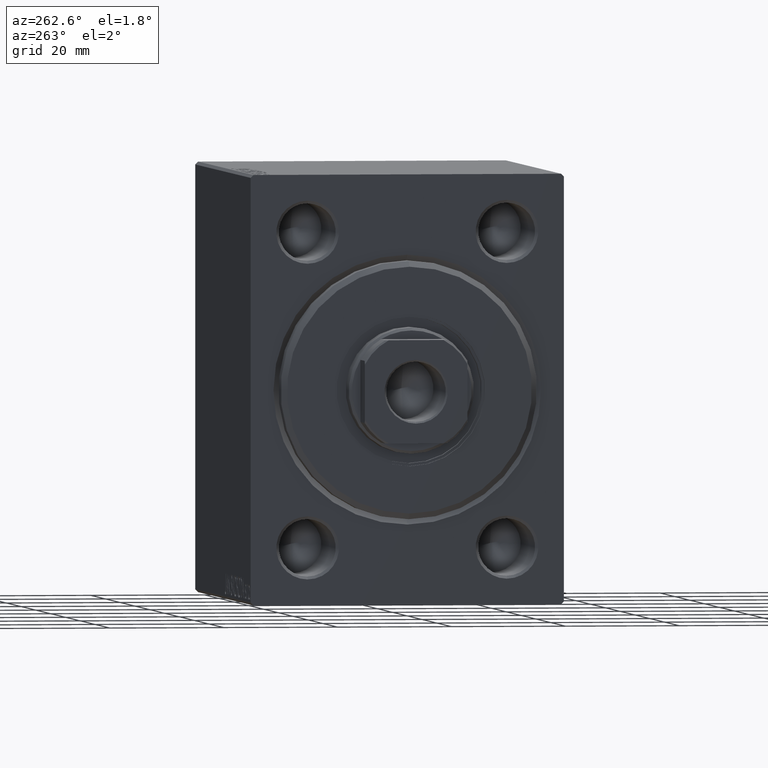
[diagram: clean part render]
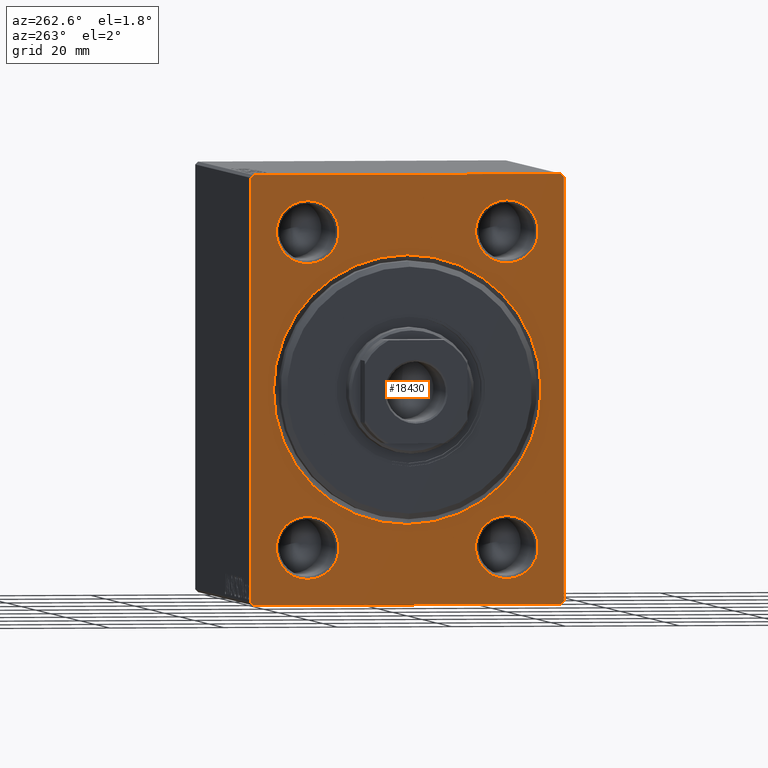
[diagram: same view with one face highlighted and labeled with its STEP entity id]
A machine part, auxiliary view. The second image highlights one B-rep face of the part: STEP entity #18430.
In plain terms, the highlighted planar face has unit normal (1, 0, 0).
Its self-contained STEP definition (entity closure, byte-faithful):
#83 = VERTEX_POINT ( 'NONE', #37054 ) ;
#647 = DIRECTION ( 'NONE',  ( 1.000000000000000000, 0.000000000000000000, 0.000000000000000000 ) ) ;
#742 = ORIENTED_EDGE ( 'NONE', *, *, #34418, .T. ) ;
#1707 = DIRECTION ( 'NONE',  ( 0.000000000000000000, 0.000000000000000000, -1.000000000000000000 ) ) ;
#1836 = CARTESIAN_POINT ( 'NONE',  ( 0.000000000000000000, -26.99999999999999645, -37.50000000000000000 ) ) ;
#1911 = VERTEX_POINT ( 'NONE', #34333 ) ;
#2253 = FACE_BOUND ( 'NONE', #6599, .T. ) ;
#2438 = DIRECTION ( 'NONE',  ( 1.000000000000000000, 0.000000000000000000, 0.000000000000000000 ) ) ;
#3298 = CARTESIAN_POINT ( 'NONE',  ( 0.000000000000000000, -17.50000000000000000, -21.99999999999997868 ) ) ;
#4293 = VECTOR ( 'NONE', #32413, 1000.000000000000000 ) ;
#4886 = VERTEX_POINT ( 'NONE', #9165 ) ;
#5223 = DIRECTION ( 'NONE',  ( 1.000000000000000000, 0.000000000000000000, 0.000000000000000000 ) ) ;
#5839 = DIRECTION ( 'NONE',  ( 1.000000000000000000, 0.000000000000000000, 0.000000000000000000 ) ) ;
#6336 = CIRCLE ( 'NONE', #37127, 5.500000000000001776 ) ;
#6485 = EDGE_CURVE ( 'NONE', #34258, #20159, #28331, .T. ) ;
#6599 = EDGE_LOOP ( 'NONE', ( #32064, #36457 ) ) ;
#7498 = LINE ( 'NONE', #17616, #35744 ) ;
#7537 = VECTOR ( 'NONE', #42684, 1000.000000000000000 ) ;
#7933 = CARTESIAN_POINT ( 'NONE',  ( 0.000000000000000000, 17.50000000000000000, 27.50000000000000000 ) ) ;
#8046 = ORIENTED_EDGE ( 'NONE', *, *, #15360, .F. ) ;
#8048 = CARTESIAN_POINT ( 'NONE',  ( 0.000000000000000000, 0.000000000000000000, 0.000000000000000000 ) ) ;
#8477 = EDGE_CURVE ( 'NONE', #27293, #31369, #32805, .T. ) ;
#8632 = ORIENTED_EDGE ( 'NONE', *, *, #40438, .T. ) ;
#8811 = DIRECTION ( 'NONE',  ( 0.000000000000000000, 0.000000000000000000, -1.000000000000000000 ) ) ;
#8940 = EDGE_CURVE ( 'NONE', #17649, #20159, #12903, .T. ) ;
#9051 = CARTESIAN_POINT ( 'NONE',  ( 0.000000000000000000, 27.00000000000001066, 37.50000000000000000 ) ) ;
#9165 = CARTESIAN_POINT ( 'NONE',  ( 0.000000000000000000, 27.00000000000000355, -37.50000000000000000 ) ) ;
#9524 = DIRECTION ( 'NONE',  ( 0.000000000000000000, 0.000000000000000000, -1.000000000000000000 ) ) ;
#10153 = CIRCLE ( 'NONE', #11578, 5.500000000000018652 ) ;
#10558 = ORIENTED_EDGE ( 'NONE', *, *, #8940, .F. ) ;
#10864 = CARTESIAN_POINT ( 'NONE',  ( 0.000000000000000000, -27.49999999999999645, 36.99999999999997158 ) ) ;
#11003 = EDGE_CURVE ( 'NONE', #25510, #27464, #32668, .T. ) ;
#11293 = CARTESIAN_POINT ( 'NONE',  ( 0.000000000000000000, 27.50000000000000355, -37.00000000000000000 ) ) ;
#11478 = VERTEX_POINT ( 'NONE', #40336 ) ;
#11578 = AXIS2_PLACEMENT_3D ( 'NONE', #39901, #2438, #40344 ) ;
#12131 = DIRECTION ( 'NONE',  ( 1.000000000000000000, 0.000000000000000000, 0.000000000000000000 ) ) ;
#12513 = LINE ( 'NONE', #15209, #16338 ) ;
#12710 = LINE ( 'NONE', #26386, #40762 ) ;
#12842 = CARTESIAN_POINT ( 'NONE',  ( 0.000000000000000000, 27.50000000000000355, -37.50000000000000000 ) ) ;
#12903 = LINE ( 'NONE', #18819, #26906 ) ;
#12932 = DIRECTION ( 'NONE',  ( -0.000000000000000000, 0.7071067811865474617, -0.7071067811865474617 ) ) ;
#13460 = CIRCLE ( 'NONE', #38526, 5.500000000000001776 ) ;
#14290 = EDGE_CURVE ( 'NONE', #44181, #16676, #41378, .T. ) ;
#14780 = AXIS2_PLACEMENT_3D ( 'NONE', #38409, #39075, #42432 ) ;
#15209 = CARTESIAN_POINT ( 'NONE',  ( 0.000000000000000000, -27.49999999999999645, -37.50000000000000000 ) ) ;
#15237 = VERTEX_POINT ( 'NONE', #3298 ) ;
#15287 = AXIS2_PLACEMENT_3D ( 'NONE', #22213, #35876, #29362 ) ;
#15360 = EDGE_CURVE ( 'NONE', #34258, #4886, #12513, .T. ) ;
#15408 = DIRECTION ( 'NONE',  ( 1.000000000000000000, 0.000000000000000000, 0.000000000000000000 ) ) ;
#15730 = AXIS2_PLACEMENT_3D ( 'NONE', #8048, #647, #32656 ) ;
#16111 = EDGE_CURVE ( 'NONE', #1911, #83, #13460, .T. ) ;
#16338 = VECTOR ( 'NONE', #43004, 1000.000000000000000 ) ;
#16525 = ORIENTED_EDGE ( 'NONE', *, *, #8477, .F. ) ;
#16655 = EDGE_CURVE ( 'NONE', #83, #1911, #6336, .T. ) ;
#16676 = VERTEX_POINT ( 'NONE', #42908 ) ;
#16891 = EDGE_LOOP ( 'NONE', ( #39267, #18329 ) ) ;
#17225 = DIRECTION ( 'NONE',  ( 0.000000000000000000, 0.000000000000000000, -1.000000000000000000 ) ) ;
#17235 = EDGE_LOOP ( 'NONE', ( #8632, #24365 ) ) ;
#17616 = CARTESIAN_POINT ( 'NONE',  ( 0.000000000000000000, 27.50000000000000355, -37.00000000000000000 ) ) ;
#17646 = EDGE_CURVE ( 'NONE', #27293, #4886, #7498, .T. ) ;
#17649 = VERTEX_POINT ( 'NONE', #10864 ) ;
#18181 = CIRCLE ( 'NONE', #15287, 5.500000000000018652 ) ;
#18329 = ORIENTED_EDGE ( 'NONE', *, *, #16655, .T. ) ;
#18430 = ADVANCED_FACE ( 'NONE', ( #43965, #19327, #29627, #43299, #2253, #26263 ), #36142, .F. ) ;
#18583 = ORIENTED_EDGE ( 'NONE', *, *, #43062, .T. ) ;
#18819 = CARTESIAN_POINT ( 'NONE',  ( 0.000000000000000000, -27.49999999999999645, 37.49999999999998579 ) ) ;
#19327 = FACE_BOUND ( 'NONE', #17235, .T. ) ;
#19440 = LINE ( 'NONE', #19663, #31812 ) ;
#19663 = CARTESIAN_POINT ( 'NONE',  ( 0.000000000000000000, -27.49999999999999645, 36.99999999999997158 ) ) ;
#19982 = EDGE_CURVE ( 'NONE', #35897, #31369, #12710, .T. ) ;
#20114 = CARTESIAN_POINT ( 'NONE',  ( 0.000000000000000000, 17.50000000000000000, -33.00000000000001421 ) ) ;
#20159 = VERTEX_POINT ( 'NONE', #35102 ) ;
#20692 = CARTESIAN_POINT ( 'NONE',  ( 0.000000000000000000, 27.49999999999999645, 37.00000000000001421 ) ) ;
#21151 = EDGE_CURVE ( 'NONE', #24652, #35294, #35708, .T. ) ;
#21772 = ORIENTED_EDGE ( 'NONE', *, *, #25572, .F. ) ;
#22213 = CARTESIAN_POINT ( 'NONE',  ( 0.000000000000000000, -17.50000000000000000, -27.49999999999999645 ) ) ;
#22384 = CIRCLE ( 'NONE', #33823, 23.50000000000000355 ) ;
#22444 = CIRCLE ( 'NONE', #37485, 5.500000000000018652 ) ;
#22473 = DIRECTION ( 'NONE',  ( 0.000000000000000000, 0.000000000000000000, -1.000000000000000000 ) ) ;
#22551 = LINE ( 'NONE', #36220, #4293 ) ;
#22586 = CARTESIAN_POINT ( 'NONE',  ( 0.000000000000000000, -17.50000000000000000, 27.50000000000000000 ) ) ;
#22919 = ORIENTED_EDGE ( 'NONE', *, *, #6485, .T. ) ;
#23570 = ORIENTED_EDGE ( 'NONE', *, *, #17646, .T. ) ;
#23575 = DIRECTION ( 'NONE',  ( 1.000000000000000000, 0.000000000000000000, 0.000000000000000000 ) ) ;
#24365 = ORIENTED_EDGE ( 'NONE', *, *, #41385, .T. ) ;
#24652 = VERTEX_POINT ( 'NONE', #43203 ) ;
#25148 = CARTESIAN_POINT ( 'NONE',  ( 0.000000000000000000, 17.50000000000000000, 27.50000000000000000 ) ) ;
#25410 = DIRECTION ( 'NONE',  ( -0.000000000000000000, -0.7071067811865474617, 0.7071067811865474617 ) ) ;
#25510 = VERTEX_POINT ( 'NONE', #35114 ) ;
#25572 = EDGE_CURVE ( 'NONE', #35897, #40271, #22551, .T. ) ;
#26263 = FACE_OUTER_BOUND ( 'NONE', #35853, .T. ) ;
#26386 = CARTESIAN_POINT ( 'NONE',  ( 0.000000000000000000, 27.00000000000001066, 37.50000000000000000 ) ) ;
#26519 = EDGE_LOOP ( 'NONE', ( #742, #39794 ) ) ;
#26684 = AXIS2_PLACEMENT_3D ( 'NONE', #22586, #28852, #1707 ) ;
#26701 = CARTESIAN_POINT ( 'NONE',  ( 0.000000000000000000, 0.000000000000000000, 0.000000000000000000 ) ) ;
#26845 = VECTOR ( 'NONE', #25410, 1000.000000000000114 ) ;
#26906 = VECTOR ( 'NONE', #9524, 1000.000000000000000 ) ;
#27293 = VERTEX_POINT ( 'NONE', #11293 ) ;
#27464 = VERTEX_POINT ( 'NONE', #33021 ) ;
#28331 = LINE ( 'NONE', #1836, #26845 ) ;
#28852 = DIRECTION ( 'NONE',  ( 1.000000000000000000, 0.000000000000000000, 0.000000000000000000 ) ) ;
#29362 = DIRECTION ( 'NONE',  ( 0.000000000000000000, 0.000000000000000000, -1.000000000000000000 ) ) ;
#29627 = FACE_BOUND ( 'NONE', #31735, .T. ) ;
#29750 = CARTESIAN_POINT ( 'NONE',  ( 0.000000000000000000, 17.50000000000000000, -27.49999999999999645 ) ) ;
#29966 = DIRECTION ( 'NONE',  ( -0.000000000000000000, 0.7071067811865474617, 0.7071067811865474617 ) ) ;
#30011 = DIRECTION ( 'NONE',  ( 1.000000000000000000, 0.000000000000000000, 0.000000000000000000 ) ) ;
#31369 = VERTEX_POINT ( 'NONE', #20692 ) ;
#31508 = DIRECTION ( 'NONE',  ( 0.000000000000000000, -0.7071067811865474617, -0.7071067811865474617 ) ) ;
#31726 = CIRCLE ( 'NONE', #26684, 5.500000000000022204 ) ;
#31735 = EDGE_LOOP ( 'NONE', ( #38119, #40422 ) ) ;
#31812 = VECTOR ( 'NONE', #29966, 1000.000000000000114 ) ;
#32064 = ORIENTED_EDGE ( 'NONE', *, *, #36569, .T. ) ;
#32413 = DIRECTION ( 'NONE',  ( 0.000000000000000000, -1.000000000000000000, -2.523234146875355998E-16 ) ) ;
#32656 = DIRECTION ( 'NONE',  ( 0.000000000000000000, 0.000000000000000000, -1.000000000000000000 ) ) ;
#32668 = CIRCLE ( 'NONE', #14780, 5.500000000000022204 ) ;
#32805 = LINE ( 'NONE', #12842, #7537 ) ;
#33021 = CARTESIAN_POINT ( 'NONE',  ( 0.000000000000000000, -17.50000000000000000, 33.00000000000002132 ) ) ;
#33654 = CARTESIAN_POINT ( 'NONE',  ( 0.000000000000000000, -17.50000000000000000, -27.49999999999999645 ) ) ;
#33823 = AXIS2_PLACEMENT_3D ( 'NONE', #43905, #30011, #17225 ) ;
#34258 = VERTEX_POINT ( 'NONE', #36080 ) ;
#34333 = CARTESIAN_POINT ( 'NONE',  ( 0.000000000000000000, 17.50000000000000000, 33.00000000000000711 ) ) ;
#34418 = EDGE_CURVE ( 'NONE', #35294, #24652, #22384, .T. ) ;
#35102 = CARTESIAN_POINT ( 'NONE',  ( 0.000000000000000000, -27.49999999999999645, -37.00000000000000000 ) ) ;
#35114 = CARTESIAN_POINT ( 'NONE',  ( 0.000000000000000000, -17.50000000000000000, 21.99999999999998224 ) ) ;
#35294 = VERTEX_POINT ( 'NONE', #44134 ) ;
#35526 = EDGE_CURVE ( 'NONE', #27464, #25510, #31726, .T. ) ;
#35708 = CIRCLE ( 'NONE', #15730, 23.50000000000000355 ) ;
#35744 = VECTOR ( 'NONE', #31508, 1000.000000000000114 ) ;
#35853 = EDGE_LOOP ( 'NONE', ( #10558, #18583, #21772, #44103, #16525, #23570, #8046, #22919 ) ) ;
#35876 = DIRECTION ( 'NONE',  ( 1.000000000000000000, 0.000000000000000000, 0.000000000000000000 ) ) ;
#35897 = VERTEX_POINT ( 'NONE', #9051 ) ;
#36080 = CARTESIAN_POINT ( 'NONE',  ( 0.000000000000000000, -26.99999999999999645, -37.50000000000000000 ) ) ;
#36142 = PLANE ( 'NONE',  #43606 ) ;
#36220 = CARTESIAN_POINT ( 'NONE',  ( 0.000000000000000000, 27.49999999999999645, 37.50000000000000000 ) ) ;
#36457 = ORIENTED_EDGE ( 'NONE', *, *, #14290, .T. ) ;
#36569 = EDGE_CURVE ( 'NONE', #16676, #44181, #10153, .T. ) ;
#37054 = CARTESIAN_POINT ( 'NONE',  ( 0.000000000000000000, 17.50000000000000000, 21.99999999999999645 ) ) ;
#37127 = AXIS2_PLACEMENT_3D ( 'NONE', #7933, #5223, #8811 ) ;
#37477 = DIRECTION ( 'NONE',  ( 0.000000000000000000, 0.000000000000000000, -1.000000000000000000 ) ) ;
#37485 = AXIS2_PLACEMENT_3D ( 'NONE', #33654, #23575, #37477 ) ;
#38119 = ORIENTED_EDGE ( 'NONE', *, *, #35526, .T. ) ;
#38409 = CARTESIAN_POINT ( 'NONE',  ( 0.000000000000000000, -17.50000000000000000, 27.50000000000000000 ) ) ;
#38526 = AXIS2_PLACEMENT_3D ( 'NONE', #25148, #12131, #38824 ) ;
#38824 = DIRECTION ( 'NONE',  ( 0.000000000000000000, 0.000000000000000000, -1.000000000000000000 ) ) ;
#39075 = DIRECTION ( 'NONE',  ( 1.000000000000000000, 0.000000000000000000, 0.000000000000000000 ) ) ;
#39267 = ORIENTED_EDGE ( 'NONE', *, *, #16111, .T. ) ;
#39794 = ORIENTED_EDGE ( 'NONE', *, *, #21151, .T. ) ;
#39901 = CARTESIAN_POINT ( 'NONE',  ( 0.000000000000000000, 17.50000000000000000, -27.49999999999999645 ) ) ;
#40271 = VERTEX_POINT ( 'NONE', #42865 ) ;
#40336 = CARTESIAN_POINT ( 'NONE',  ( 0.000000000000000000, -17.50000000000000000, -33.00000000000001421 ) ) ;
#40344 = DIRECTION ( 'NONE',  ( 0.000000000000000000, 0.000000000000000000, -1.000000000000000000 ) ) ;
#40422 = ORIENTED_EDGE ( 'NONE', *, *, #11003, .T. ) ;
#40438 = EDGE_CURVE ( 'NONE', #15237, #11478, #22444, .T. ) ;
#40762 = VECTOR ( 'NONE', #12932, 1000.000000000000114 ) ;
#41378 = CIRCLE ( 'NONE', #43509, 5.500000000000018652 ) ;
#41385 = EDGE_CURVE ( 'NONE', #11478, #15237, #18181, .T. ) ;
#42432 = DIRECTION ( 'NONE',  ( 0.000000000000000000, 0.000000000000000000, -1.000000000000000000 ) ) ;
#42684 = DIRECTION ( 'NONE',  ( 0.000000000000000000, -9.251858538542971581E-17, 1.000000000000000000 ) ) ;
#42865 = CARTESIAN_POINT ( 'NONE',  ( 0.000000000000000000, -26.99999999999998224, 37.49999999999998579 ) ) ;
#42908 = CARTESIAN_POINT ( 'NONE',  ( 0.000000000000000000, 17.50000000000000000, -21.99999999999997868 ) ) ;
#43004 = DIRECTION ( 'NONE',  ( 0.000000000000000000, 1.000000000000000000, 0.000000000000000000 ) ) ;
#43062 = EDGE_CURVE ( 'NONE', #17649, #40271, #19440, .T. ) ;
#43203 = CARTESIAN_POINT ( 'NONE',  ( 0.000000000000000000, 2.877919977996280715E-15, -23.50000000000000355 ) ) ;
#43299 = FACE_BOUND ( 'NONE', #16891, .T. ) ;
#43419 = DIRECTION ( 'NONE',  ( 0.000000000000000000, 0.000000000000000000, -1.000000000000000000 ) ) ;
#43509 = AXIS2_PLACEMENT_3D ( 'NONE', #29750, #15408, #43419 ) ;
#43606 = AXIS2_PLACEMENT_3D ( 'NONE', #26701, #5839, #22473 ) ;
#43905 = CARTESIAN_POINT ( 'NONE',  ( 0.000000000000000000, 0.000000000000000000, 0.000000000000000000 ) ) ;
#43965 = FACE_BOUND ( 'NONE', #26519, .T. ) ;
#44103 = ORIENTED_EDGE ( 'NONE', *, *, #19982, .T. ) ;
#44134 = CARTESIAN_POINT ( 'NONE',  ( 0.000000000000000000, 0.000000000000000000, 23.50000000000000355 ) ) ;
#44181 = VERTEX_POINT ( 'NONE', #20114 ) ;